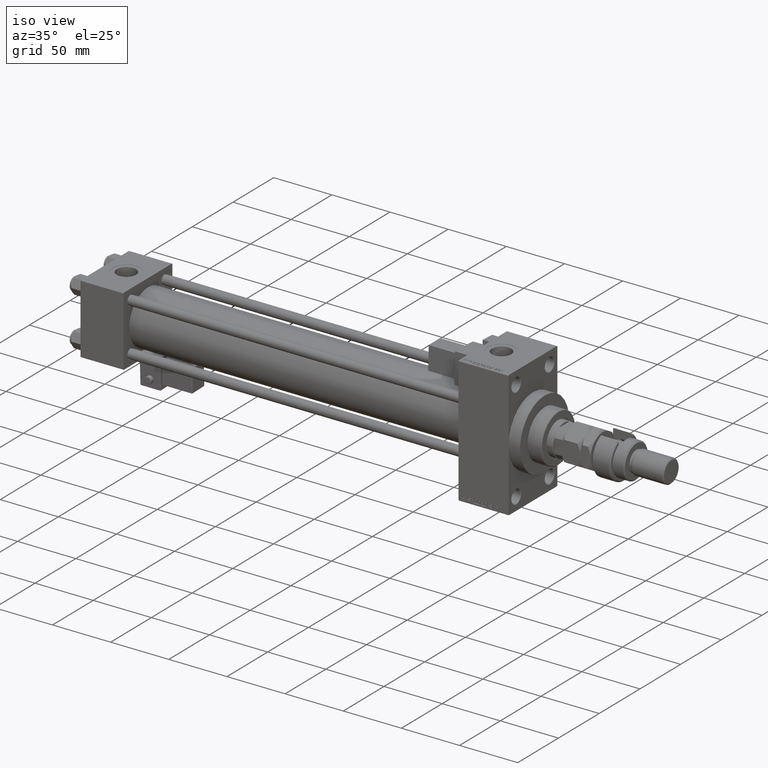
[diagram: clean part render]
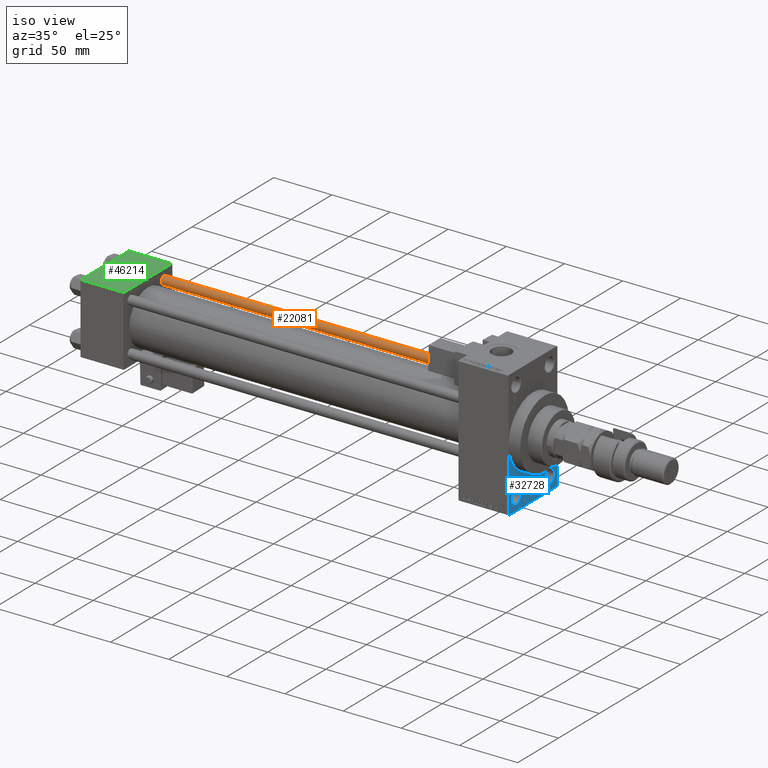
[diagram: same view with three faces highlighted in distinct colors, each labeled with its STEP entity id]
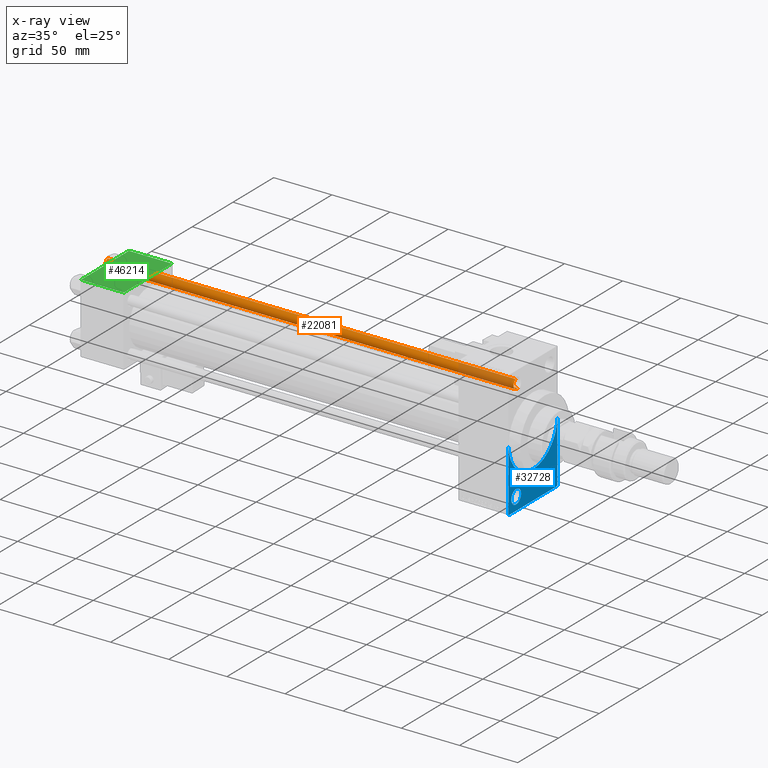
[diagram: x-ray of the same camera — body ghosted, the three highlighted faces saturated]
A machine part, iso view with three faces highlighted in distinct colors.
The next image is the same camera in x-ray (body ghosted, the three faces saturated) — at least one of them is partly hidden behind the body in this view.
Their STEP definitions:

[orange] entity #22081 — the highlighted cylindrical surface (edge-blend (fillet) strip) has radius 4 mm, axis along (-1, -0, 0).
#742 = CARTESIAN_POINT ( 'NONE',  ( 4.000000000000000000, 4.898587196589412829E-16, 351.5000000000000000 ) ) ;
#1069 = VECTOR ( 'NONE', #6371, 1000.000000000000000 ) ;
#1849 = DIRECTION ( 'NONE',  ( -1.000000000000000000, 0.000000000000000000, 0.000000000000000000 ) ) ;
#2105 = VECTOR ( 'NONE', #44912, 1000.000000000000000 ) ;
#3969 = CARTESIAN_POINT ( 'NONE',  ( -4.000000000000000000, 0.000000000000000000, 352.0000000000000000 ) ) ;
#5046 = ORIENTED_EDGE ( 'NONE', *, *, #24593, .T. ) ;
#5558 = CARTESIAN_POINT ( 'NONE',  ( 4.000000000000000000, 4.898587196589412829E-16, 352.0000000000000000 ) ) ;
#6371 = DIRECTION ( 'NONE',  ( -0.000000000000000000, -0.000000000000000000, -1.000000000000000000 ) ) ;
#7918 = EDGE_LOOP ( 'NONE', ( #44085, #30511, #31171, #5046 ) ) ;
#10555 = DIRECTION ( 'NONE',  ( 1.000000000000000000, 0.000000000000000000, 0.000000000000000000 ) ) ;
#10926 = VERTEX_POINT ( 'NONE', #15848 ) ;
#13259 = CARTESIAN_POINT ( 'NONE',  ( 4.000000000000000000, 4.898587196589412829E-16, 0.5000000000000004441 ) ) ;
#13276 = AXIS2_PLACEMENT_3D ( 'NONE', #24969, #20582, #20845 ) ;
#14062 = CARTESIAN_POINT ( 'NONE',  ( -4.000000000000000000, 0.000000000000000000, 0.5000000000000004441 ) ) ;
#15554 = EDGE_CURVE ( 'NONE', #26617, #10926, #20052, .T. ) ;
#15848 = CARTESIAN_POINT ( 'NONE',  ( -4.000000000000000000, 0.000000000000000000, 351.5000000000000000 ) ) ;
#19048 = CARTESIAN_POINT ( 'NONE',  ( 0.000000000000000000, 0.000000000000000000, 351.5000000000000000 ) ) ;
#19708 = CYLINDRICAL_SURFACE ( 'NONE', #21903, 4.000000000000000000 ) ;
#20052 = CIRCLE ( 'NONE', #41973, 4.000000000000000000 ) ;
#20582 = DIRECTION ( 'NONE',  ( -0.000000000000000000, -0.000000000000000000, 1.000000000000000000 ) ) ;
#20845 = DIRECTION ( 'NONE',  ( 1.000000000000000000, 0.000000000000000000, 0.000000000000000000 ) ) ;
#21903 = AXIS2_PLACEMENT_3D ( 'NONE', #31518, #26855, #1849 ) ;
#22081 = ADVANCED_FACE ( 'NONE', ( #31247 ), #19708, .T. ) ;
#22306 = LINE ( 'NONE', #5558, #1069 ) ;
#24593 = EDGE_CURVE ( 'NONE', #43663, #37617, #50069, .T. ) ;
#24969 = CARTESIAN_POINT ( 'NONE',  ( 0.000000000000000000, 0.000000000000000000, 0.5000000000000004441 ) ) ;
#26617 = VERTEX_POINT ( 'NONE', #742 ) ;
#26855 = DIRECTION ( 'NONE',  ( -0.000000000000000000, -0.000000000000000000, -1.000000000000000000 ) ) ;
#27299 = EDGE_CURVE ( 'NONE', #26617, #37617, #22306, .T. ) ;
#30511 = ORIENTED_EDGE ( 'NONE', *, *, #15554, .T. ) ;
#31171 = ORIENTED_EDGE ( 'NONE', *, *, #36314, .T. ) ;
#31247 = FACE_OUTER_BOUND ( 'NONE', #7918, .T. ) ;
#31518 = CARTESIAN_POINT ( 'NONE',  ( 0.000000000000000000, 0.000000000000000000, 352.0000000000000000 ) ) ;
#35806 = DIRECTION ( 'NONE',  ( 0.000000000000000000, 0.000000000000000000, -1.000000000000000000 ) ) ;
#36314 = EDGE_CURVE ( 'NONE', #10926, #43663, #53985, .T. ) ;
#37617 = VERTEX_POINT ( 'NONE', #13259 ) ;
#41973 = AXIS2_PLACEMENT_3D ( 'NONE', #19048, #35806, #10555 ) ;
#43663 = VERTEX_POINT ( 'NONE', #14062 ) ;
#44085 = ORIENTED_EDGE ( 'NONE', *, *, #27299, .F. ) ;
#44912 = DIRECTION ( 'NONE',  ( -0.000000000000000000, -0.000000000000000000, -1.000000000000000000 ) ) ;
#50069 = CIRCLE ( 'NONE', #13276, 4.000000000000000000 ) ;
#53985 = LINE ( 'NONE', #3969, #2105 ) ;

[blue] entity #32728 — the highlighted planar face has unit normal (-1, 0, 0).
#261 = ORIENTED_EDGE ( 'NONE', *, *, #52768, .F. ) ;
#599 = LINE ( 'NONE', #42361, #4712 ) ;
#1815 = CIRCLE ( 'NONE', #23747, 30.00000000000000000 ) ;
#2012 = CARTESIAN_POINT ( 'NONE',  ( 367.9999999999999432, -20.50000000000000000, -43.50000000000000000 ) ) ;
#3199 = EDGE_CURVE ( 'NONE', #29121, #43425, #10798, .T. ) ;
#3475 = DIRECTION ( 'NONE',  ( 0.000000000000000000, 0.000000000000000000, 1.000000000000000000 ) ) ;
#4712 = VECTOR ( 'NONE', #12724, 1000.000000000000000 ) ;
#4827 = EDGE_CURVE ( 'NONE', #34517, #42591, #599, .T. ) ;
#5586 = CARTESIAN_POINT ( 'NONE',  ( 367.9999999999999432, 29.99999999999999645, -54.00000000000004974 ) ) ;
#6216 = LINE ( 'NONE', #26812, #15711 ) ;
#6240 = CARTESIAN_POINT ( 'NONE',  ( 367.9999999999999432, 0.000000000000000000, 0.000000000000000000 ) ) ;
#6971 = DIRECTION ( 'NONE',  ( 0.000000000000000000, 0.000000000000000000, 1.000000000000000000 ) ) ;
#7393 = CARTESIAN_POINT ( 'NONE',  ( 367.9999999999999432, 0.000000000000000000, 0.000000000000000000 ) ) ;
#7975 = VECTOR ( 'NONE', #44685, 1000.000000000000000 ) ;
#8407 = EDGE_CURVE ( 'NONE', #48732, #12234, #18259, .T. ) ;
#9235 = ORIENTED_EDGE ( 'NONE', *, *, #33665, .T. ) ;
#9269 = VECTOR ( 'NONE', #51766, 1000.000000000000000 ) ;
#9710 = CARTESIAN_POINT ( 'NONE',  ( 367.9999999999999432, 30.00000000000000000, 0.000000000000000000 ) ) ;
#10390 = CARTESIAN_POINT ( 'NONE',  ( 367.9999999999999432, 29.49999999999999645, -54.49999999999999289 ) ) ;
#10798 = CIRCLE ( 'NONE', #52909, 6.000000000000005329 ) ;
#11766 = ORIENTED_EDGE ( 'NONE', *, *, #3199, .T. ) ;
#12234 = VERTEX_POINT ( 'NONE', #36381 ) ;
#12604 = VERTEX_POINT ( 'NONE', #12683 ) ;
#12683 = CARTESIAN_POINT ( 'NONE',  ( 367.9999999999999432, 20.50000000000000000, -49.50000000000000000 ) ) ;
#12724 = DIRECTION ( 'NONE',  ( 0.000000000000000000, -1.000000000000000000, -1.156482317317871478E-16 ) ) ;
#12773 = LINE ( 'NONE', #17427, #53549 ) ;
#13353 = ORIENTED_EDGE ( 'NONE', *, *, #51874, .T. ) ;
#13719 = ORIENTED_EDGE ( 'NONE', *, *, #53257, .T. ) ;
#14075 = ORIENTED_EDGE ( 'NONE', *, *, #22407, .F. ) ;
#14125 = CIRCLE ( 'NONE', #47464, 6.000000000000005329 ) ;
#14423 = CARTESIAN_POINT ( 'NONE',  ( 367.9999999999999432, 20.50000000000000000, -37.49999999999999289 ) ) ;
#14996 = CIRCLE ( 'NONE', #38619, 30.00000000000000000 ) ;
#15711 = VECTOR ( 'NONE', #22148, 1000.000000000000000 ) ;
#15998 = EDGE_CURVE ( 'NONE', #43425, #29121, #30543, .T. ) ;
#16135 = LINE ( 'NONE', #40030, #7975 ) ;
#16136 = DIRECTION ( 'NONE',  ( -1.000000000000000000, 0.000000000000000000, -0.000000000000000000 ) ) ;
#16243 = DIRECTION ( 'NONE',  ( 0.000000000000000000, 0.000000000000000000, 1.000000000000000000 ) ) ;
#16275 = AXIS2_PLACEMENT_3D ( 'NONE', #6240, #47440, #51842 ) ;
#16400 = DIRECTION ( 'NONE',  ( 1.000000000000000000, 0.000000000000000000, 0.000000000000000000 ) ) ;
#17427 = CARTESIAN_POINT ( 'NONE',  ( 367.9999999999999432, 29.99999999999999645, 54.49999999999999289 ) ) ;
#17992 = CARTESIAN_POINT ( 'NONE',  ( 367.9999999999999432, -30.00000000000000000, 54.50000000000000000 ) ) ;
#18259 = LINE ( 'NONE', #17992, #9269 ) ;
#18713 = AXIS2_PLACEMENT_3D ( 'NONE', #44686, #16136, #3475 ) ;
#18782 = DIRECTION ( 'NONE',  ( -1.000000000000000000, 0.000000000000000000, -0.000000000000000000 ) ) ;
#18870 = ORIENTED_EDGE ( 'NONE', *, *, #19625, .T. ) ;
#19625 = EDGE_CURVE ( 'NONE', #12234, #42591, #6216, .T. ) ;
#20423 = ORIENTED_EDGE ( 'NONE', *, *, #23975, .F. ) ;
#22148 = DIRECTION ( 'NONE',  ( 0.000000000000000000, 0.7071067811865352493, -0.7071067811865597852 ) ) ;
#22407 = EDGE_CURVE ( 'NONE', #35597, #22545, #12773, .T. ) ;
#22545 = VERTEX_POINT ( 'NONE', #5586 ) ;
#22986 = FACE_BOUND ( 'NONE', #42060, .T. ) ;
#23747 = AXIS2_PLACEMENT_3D ( 'NONE', #7393, #49944, #54076 ) ;
#23975 = EDGE_CURVE ( 'NONE', #28105, #35597, #14996, .T. ) ;
#25141 = CARTESIAN_POINT ( 'NONE',  ( 367.9999999999999432, 20.50000000000000000, -43.50000000000000000 ) ) ;
#26812 = CARTESIAN_POINT ( 'NONE',  ( 367.9999999999999432, -29.50000000000000355, -54.50000000000000000 ) ) ;
#27105 = FACE_OUTER_BOUND ( 'NONE', #40924, .T. ) ;
#28047 = CARTESIAN_POINT ( 'NONE',  ( 367.9999999999999432, -20.50000000000000000, -43.50000000000000000 ) ) ;
#28105 = VERTEX_POINT ( 'NONE', #44067 ) ;
#28861 = DIRECTION ( 'NONE',  ( -1.000000000000000000, 0.000000000000000000, -0.000000000000000000 ) ) ;
#29121 = VERTEX_POINT ( 'NONE', #38676 ) ;
#29548 = DIRECTION ( 'NONE',  ( -1.000000000000000000, 0.000000000000000000, -0.000000000000000000 ) ) ;
#30543 = CIRCLE ( 'NONE', #44584, 6.000000000000005329 ) ;
#31393 = ORIENTED_EDGE ( 'NONE', *, *, #15998, .T. ) ;
#32382 = CARTESIAN_POINT ( 'NONE',  ( 367.9999999999999432, -30.00000000000000000, 0.000000000000000000 ) ) ;
#32728 = ADVANCED_FACE ( 'NONE', ( #51569, #22986, #27105 ), #43048, .F. ) ;
#33665 = EDGE_CURVE ( 'NONE', #12604, #49966, #45027, .T. ) ;
#34517 = VERTEX_POINT ( 'NONE', #10390 ) ;
#35583 = ORIENTED_EDGE ( 'NONE', *, *, #4827, .F. ) ;
#35597 = VERTEX_POINT ( 'NONE', #9710 ) ;
#36381 = CARTESIAN_POINT ( 'NONE',  ( 367.9999999999999432, -30.00000000000000000, -53.99999999999998579 ) ) ;
#37154 = CARTESIAN_POINT ( 'NONE',  ( 367.9999999999999432, -29.50000000000000355, -54.50000000000000000 ) ) ;
#38619 = AXIS2_PLACEMENT_3D ( 'NONE', #49353, #16400, #46037 ) ;
#38676 = CARTESIAN_POINT ( 'NONE',  ( 367.9999999999999432, -20.50000000000000000, -37.49999999999999289 ) ) ;
#39716 = CARTESIAN_POINT ( 'NONE',  ( 367.9999999999999432, -20.50000000000000000, -49.50000000000000000 ) ) ;
#40030 = CARTESIAN_POINT ( 'NONE',  ( 367.9999999999999432, 29.99999999999999645, -54.00000000000004974 ) ) ;
#40924 = EDGE_LOOP ( 'NONE', ( #42546, #18870, #35583, #13353, #14075, #20423, #261 ) ) ;
#42060 = EDGE_LOOP ( 'NONE', ( #9235, #13719 ) ) ;
#42361 = CARTESIAN_POINT ( 'NONE',  ( 367.9999999999999432, 29.99999999999999645, -54.49999999999999289 ) ) ;
#42546 = ORIENTED_EDGE ( 'NONE', *, *, #8407, .T. ) ;
#42591 = VERTEX_POINT ( 'NONE', #37154 ) ;
#43048 = PLANE ( 'NONE',  #16275 ) ;
#43425 = VERTEX_POINT ( 'NONE', #39716 ) ;
#44067 = CARTESIAN_POINT ( 'NONE',  ( 367.9999999999999432, 3.673940397442059178E-15, -30.00000000000000000 ) ) ;
#44584 = AXIS2_PLACEMENT_3D ( 'NONE', #28047, #28861, #16243 ) ;
#44685 = DIRECTION ( 'NONE',  ( -0.000000000000000000, 0.7071067811865868746, 0.7071067811865081598 ) ) ;
#44686 = CARTESIAN_POINT ( 'NONE',  ( 367.9999999999999432, 20.50000000000000000, -43.50000000000000000 ) ) ;
#45027 = CIRCLE ( 'NONE', #18713, 6.000000000000005329 ) ;
#46037 = DIRECTION ( 'NONE',  ( 0.000000000000000000, 0.000000000000000000, -1.000000000000000000 ) ) ;
#46298 = DIRECTION ( 'NONE',  ( 0.000000000000000000, 0.000000000000000000, 1.000000000000000000 ) ) ;
#46803 = DIRECTION ( 'NONE',  ( 0.000000000000000000, 0.000000000000000000, -1.000000000000000000 ) ) ;
#47440 = DIRECTION ( 'NONE',  ( -1.000000000000000000, 0.000000000000000000, -0.000000000000000000 ) ) ;
#47464 = AXIS2_PLACEMENT_3D ( 'NONE', #25141, #29548, #46298 ) ;
#48732 = VERTEX_POINT ( 'NONE', #32382 ) ;
#49353 = CARTESIAN_POINT ( 'NONE',  ( 367.9999999999999432, 0.000000000000000000, 0.000000000000000000 ) ) ;
#49944 = DIRECTION ( 'NONE',  ( 1.000000000000000000, 0.000000000000000000, 0.000000000000000000 ) ) ;
#49966 = VERTEX_POINT ( 'NONE', #14423 ) ;
#51569 = FACE_BOUND ( 'NONE', #53581, .T. ) ;
#51766 = DIRECTION ( 'NONE',  ( 0.000000000000000000, 0.000000000000000000, -1.000000000000000000 ) ) ;
#51842 = DIRECTION ( 'NONE',  ( -0.000000000000000000, 0.000000000000000000, 1.000000000000000000 ) ) ;
#51874 = EDGE_CURVE ( 'NONE', #34517, #22545, #16135, .T. ) ;
#52768 = EDGE_CURVE ( 'NONE', #48732, #28105, #1815, .T. ) ;
#52909 = AXIS2_PLACEMENT_3D ( 'NONE', #2012, #18782, #6971 ) ;
#53257 = EDGE_CURVE ( 'NONE', #49966, #12604, #14125, .T. ) ;
#53549 = VECTOR ( 'NONE', #46803, 1000.000000000000000 ) ;
#53581 = EDGE_LOOP ( 'NONE', ( #31393, #11766 ) ) ;
#54076 = DIRECTION ( 'NONE',  ( 0.000000000000000000, 0.000000000000000000, -1.000000000000000000 ) ) ;

[green] entity #46214 — the highlighted planar face has unit normal (0, 0, -1).
#2065 = ORIENTED_EDGE ( 'NONE', *, *, #30011, .T. ) ;
#2140 = VERTEX_POINT ( 'NONE', #53484 ) ;
#3135 = EDGE_CURVE ( 'NONE', #7452, #48710, #22892, .T. ) ;
#3321 = EDGE_LOOP ( 'NONE', ( #36902, #2065, #8590, #36343 ) ) ;
#3451 = LINE ( 'NONE', #51614, #36761 ) ;
#3650 = CARTESIAN_POINT ( 'NONE',  ( 37.00000000000000000, -29.49999999999998579, 29.99999999999999289 ) ) ;
#4186 = VECTOR ( 'NONE', #15050, 1000.000000000000000 ) ;
#5055 = FACE_OUTER_BOUND ( 'NONE', #3321, .T. ) ;
#6846 = CARTESIAN_POINT ( 'NONE',  ( 18.50000000000000000, -3.469446951953614978E-15, 29.99999999999999645 ) ) ;
#6976 = CARTESIAN_POINT ( 'NONE',  ( 37.00000000000000000, 29.49999999999999289, 30.00000000000000000 ) ) ;
#7452 = VERTEX_POINT ( 'NONE', #6976 ) ;
#8590 = ORIENTED_EDGE ( 'NONE', *, *, #46722, .F. ) ;
#9138 = DIRECTION ( 'NONE',  ( 0.000000000000000000, 0.000000000000000000, 1.000000000000000000 ) ) ;
#9554 = CARTESIAN_POINT ( 'NONE',  ( 6.499999999999997335, -1.999870792976790833E-15, 29.99999999999999645 ) ) ;
#9606 = CIRCLE ( 'NONE', #25401, 12.00000000000000000 ) ;
#10612 = CARTESIAN_POINT ( 'NONE',  ( 0.000000000000000000, -29.49999999999998579, 29.99999999999999289 ) ) ;
#11862 = LINE ( 'NONE', #24738, #23032 ) ;
#14004 = DIRECTION ( 'NONE',  ( 0.000000000000000000, -1.000000000000000000, -1.156482317317871725E-16 ) ) ;
#15050 = DIRECTION ( 'NONE',  ( 0.000000000000000000, -1.000000000000000000, -1.156482317317871725E-16 ) ) ;
#15327 = CARTESIAN_POINT ( 'NONE',  ( 37.00000000000000000, 29.99999999999999289, 30.00000000000000000 ) ) ;
#15649 = DIRECTION ( 'NONE',  ( 0.000000000000000000, 0.000000000000000000, 1.000000000000000000 ) ) ;
#15662 = EDGE_CURVE ( 'NONE', #2140, #17119, #48979, .T. ) ;
#15677 = AXIS2_PLACEMENT_3D ( 'NONE', #39053, #9138, #37972 ) ;
#15915 = CARTESIAN_POINT ( 'NONE',  ( 0.000000000000000000, 29.49999999999999289, 30.00000000000000000 ) ) ;
#16244 = EDGE_CURVE ( 'NONE', #48710, #43471, #3451, .T. ) ;
#16891 = CARTESIAN_POINT ( 'NONE',  ( 37.00000000000000000, 29.99999999999999289, 30.00000000000000000 ) ) ;
#17119 = VERTEX_POINT ( 'NONE', #9554 ) ;
#21419 = EDGE_LOOP ( 'NONE', ( #45154, #25066 ) ) ;
#21751 = AXIS2_PLACEMENT_3D ( 'NONE', #16891, #21802, #38571 ) ;
#21802 = DIRECTION ( 'NONE',  ( 0.000000000000000000, 1.156482317317871725E-16, -1.000000000000000000 ) ) ;
#22892 = LINE ( 'NONE', #27555, #49379 ) ;
#23032 = VECTOR ( 'NONE', #35548, 1000.000000000000000 ) ;
#24738 = CARTESIAN_POINT ( 'NONE',  ( 37.00000000000000000, -29.50000000000000000, 29.99999999999999289 ) ) ;
#25066 = ORIENTED_EDGE ( 'NONE', *, *, #50744, .F. ) ;
#25401 = AXIS2_PLACEMENT_3D ( 'NONE', #6846, #15649, #28542 ) ;
#26083 = VERTEX_POINT ( 'NONE', #3650 ) ;
#27555 = CARTESIAN_POINT ( 'NONE',  ( 0.000000000000000000, 29.49999999999999289, 30.00000000000000000 ) ) ;
#28542 = DIRECTION ( 'NONE',  ( 1.000000000000000000, 0.000000000000000000, 0.000000000000000000 ) ) ;
#30011 = EDGE_CURVE ( 'NONE', #43471, #26083, #11862, .T. ) ;
#30585 = PLANE ( 'NONE',  #21751 ) ;
#31244 = LINE ( 'NONE', #15327, #4186 ) ;
#35548 = DIRECTION ( 'NONE',  ( 1.000000000000000000, 0.000000000000000000, 0.000000000000000000 ) ) ;
#36343 = ORIENTED_EDGE ( 'NONE', *, *, #3135, .T. ) ;
#36761 = VECTOR ( 'NONE', #14004, 1000.000000000000000 ) ;
#36902 = ORIENTED_EDGE ( 'NONE', *, *, #16244, .T. ) ;
#37972 = DIRECTION ( 'NONE',  ( 1.000000000000000000, 0.000000000000000000, 0.000000000000000000 ) ) ;
#38571 = DIRECTION ( 'NONE',  ( 0.000000000000000000, 1.000000000000000000, 1.156482317317871725E-16 ) ) ;
#39053 = CARTESIAN_POINT ( 'NONE',  ( 18.50000000000000000, -3.469446951953614978E-15, 29.99999999999999645 ) ) ;
#40760 = DIRECTION ( 'NONE',  ( -1.000000000000000000, 0.000000000000000000, 0.000000000000000000 ) ) ;
#43471 = VERTEX_POINT ( 'NONE', #10612 ) ;
#45154 = ORIENTED_EDGE ( 'NONE', *, *, #15662, .F. ) ;
#46214 = ADVANCED_FACE ( 'NONE', ( #46814, #5055 ), #30585, .F. ) ;
#46722 = EDGE_CURVE ( 'NONE', #7452, #26083, #31244, .T. ) ;
#46814 = FACE_BOUND ( 'NONE', #21419, .T. ) ;
#48710 = VERTEX_POINT ( 'NONE', #15915 ) ;
#48979 = CIRCLE ( 'NONE', #15677, 12.00000000000000000 ) ;
#49379 = VECTOR ( 'NONE', #40760, 1000.000000000000000 ) ;
#50744 = EDGE_CURVE ( 'NONE', #17119, #2140, #9606, .T. ) ;
#51614 = CARTESIAN_POINT ( 'NONE',  ( 0.000000000000000000, 29.99999999999999289, 30.00000000000000000 ) ) ;
#53484 = CARTESIAN_POINT ( 'NONE',  ( 30.50000000000000000, -3.469446951953614978E-15, 29.99999999999999645 ) ) ;